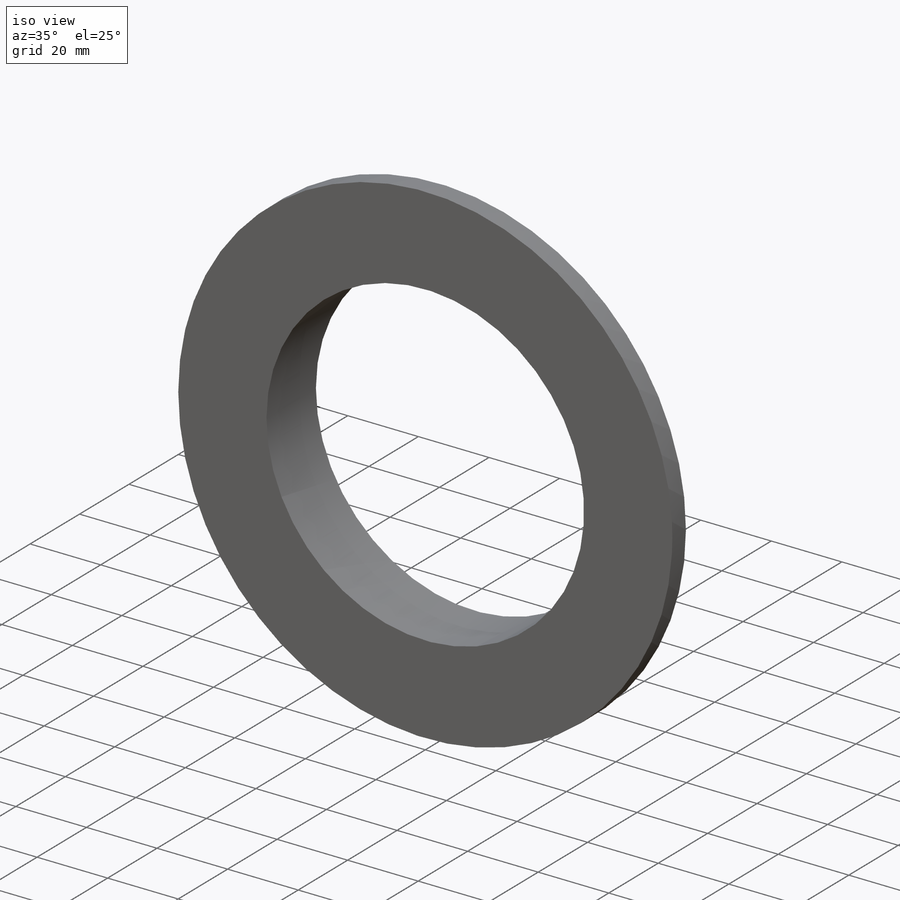
[diagram: iso view]
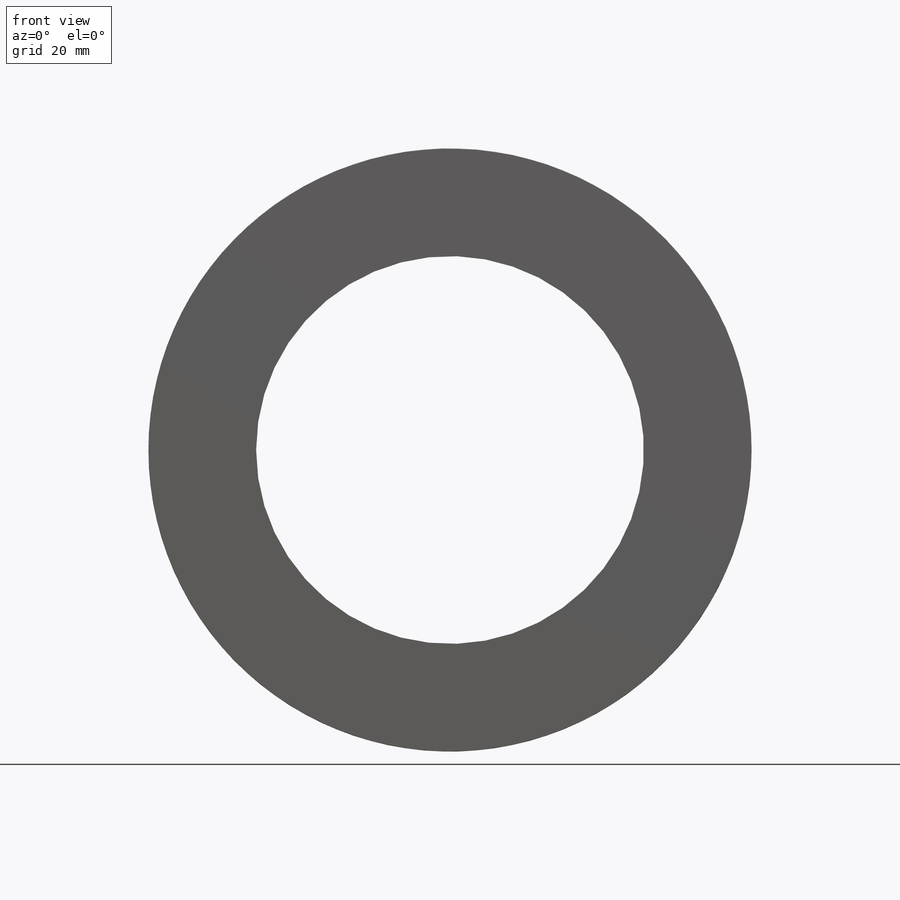
[diagram: front view]
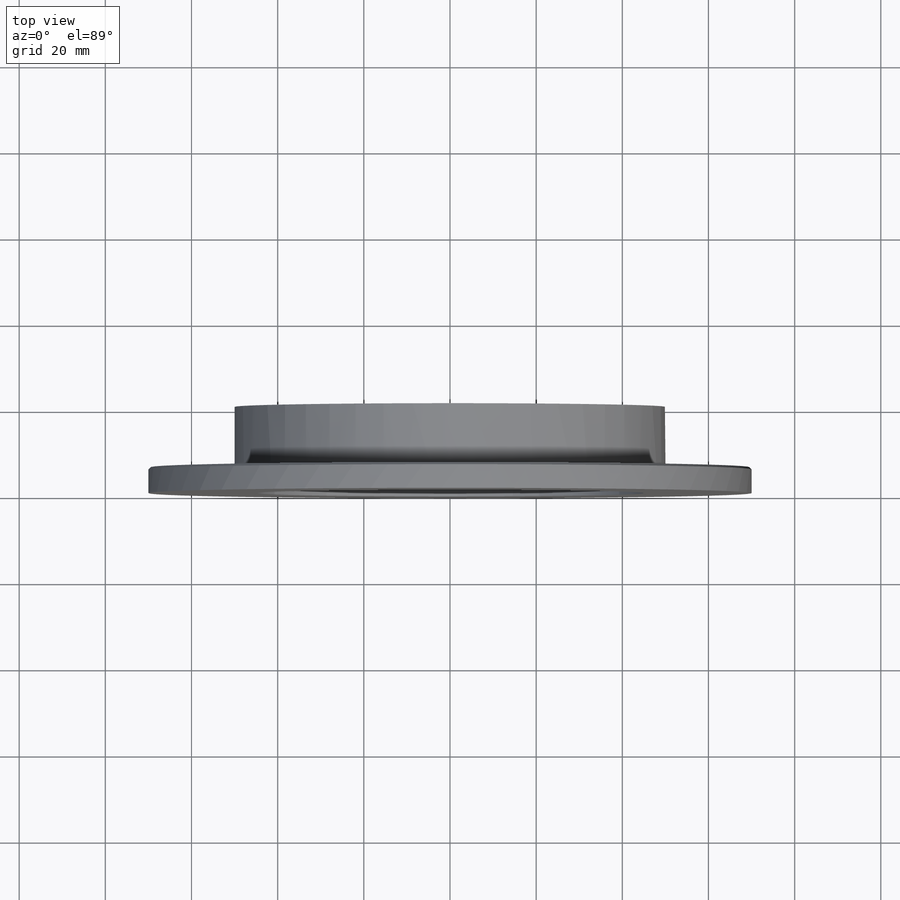
[diagram: top view]
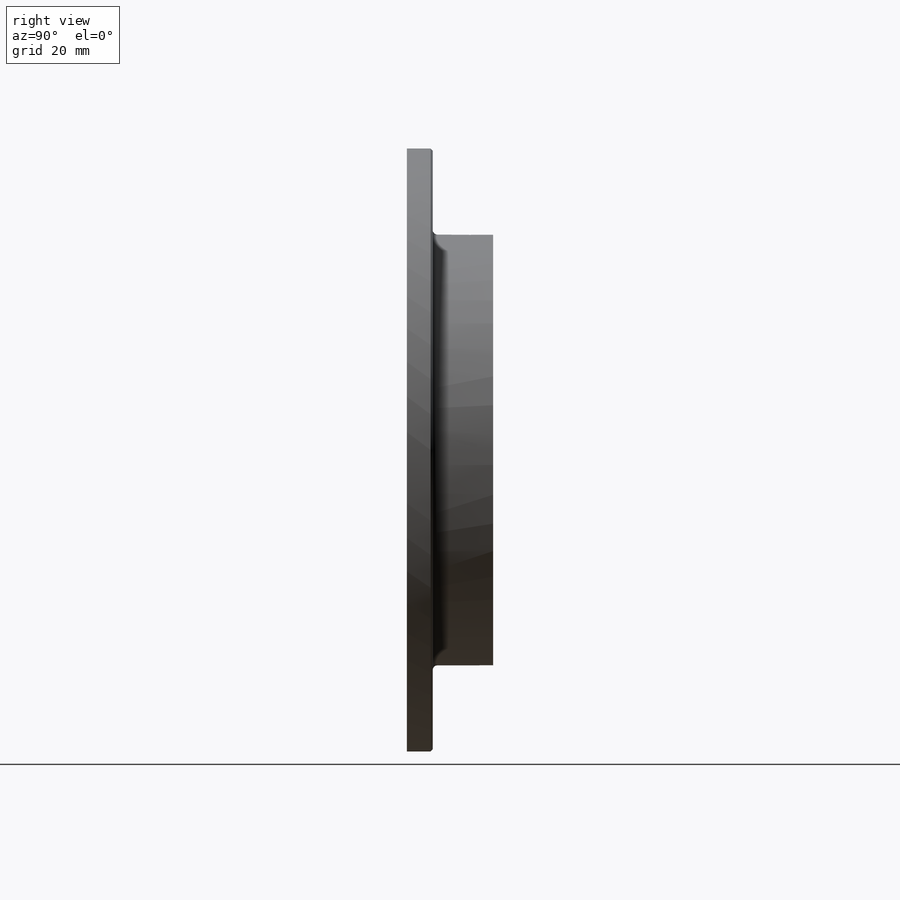
[diagram: right view]
SOLIDWORKS PART (.sldprt)
format: sldprt  version: not decoded by parser v0  size: 214,528 bytes
history: native  units: mm
features: sketch x5, plane x3, cut_extrude x2, material x1, extrude x1, fillet x1, chamfer x1, hole x1, thread x1, pattern_circular x1 (+13 scaffold rows collapsed)
feature tree (30):
  scaffold x13  (default folders/planes/origin — collapsed)
  material  "Material <nicht festgelegt>"
  plane  "Ebene vorne"
  plane  "Ebene oben"
  plane  "Ebene rechts"
  sketch  "Skizze1"  dims[D1=140.0mm]
  extrude  "Aufsatz-Linear austragen1"  Depth=20mm
  sketch  "Skizze2"  dims[D1=100.0mm]
  cut_extrude  "Schnitt-Linear austragen3"  Depth=14mm
  sketch  "Skizze3"  dims[D1=90.0mm]
  cut_extrude  "Schnitt-Linear austragen4"  [1 undecoded]
  fillet  "Verrundung1"  Radius=1mm
  chamfer  "Fase1"  Distance=0.5mm Angle=45deg
  hole  "M2 Gewindebohrung1"  [1 undecoded]
  sketch  "Skizze7"  dims[D1=47.5mm]
  thread  "Bohrungsgewinde1"  Diameter=8mm  [1 undecoded]
  sketch  "Skizze8"  dims[hole-wizard template sketch: 47 standard entries collapsed; hole parameters kept: c15.Bohrungstiefe=10.0mm c15.D3=~14.816244mm c15.Spitzenwinkel=118.0deg]
  pattern_circular  "Kreismuster1"  Count=6 Angle=60deg
decode coverage: 11 of 13 modeling features carry decoded parameters
note: ~ marks probable driven/reference dimensions
note: 3 parameter values undecoded
note: suppression state not decoded; provenance and decode notes live in map.json
